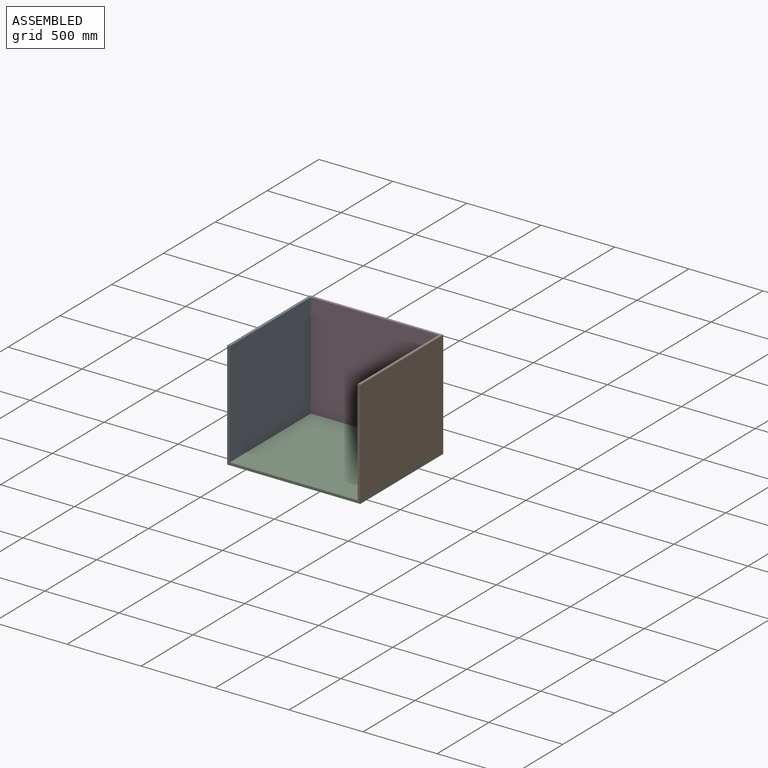
[diagram: assembled view]
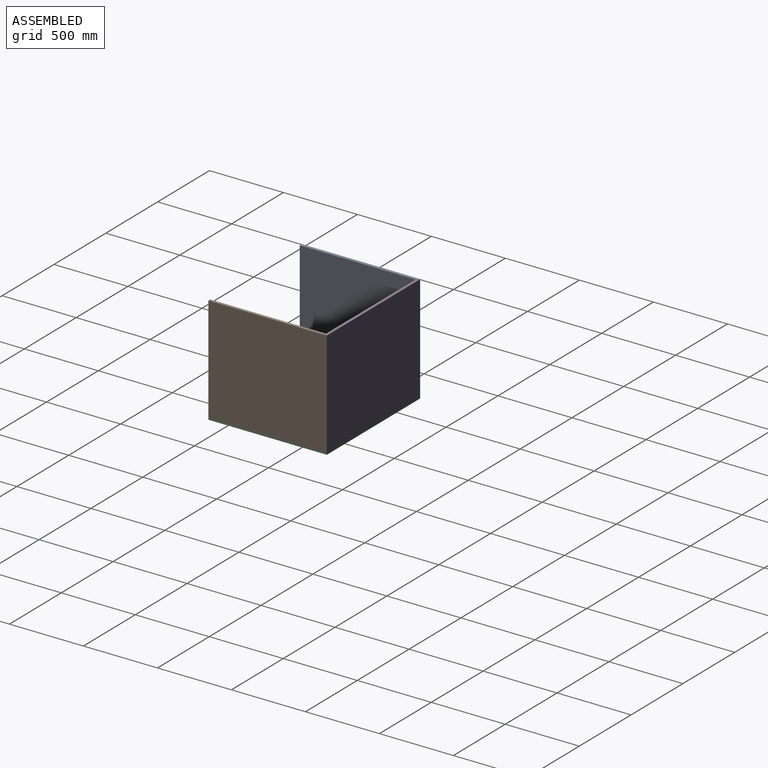
[diagram: assembled view, second angle]
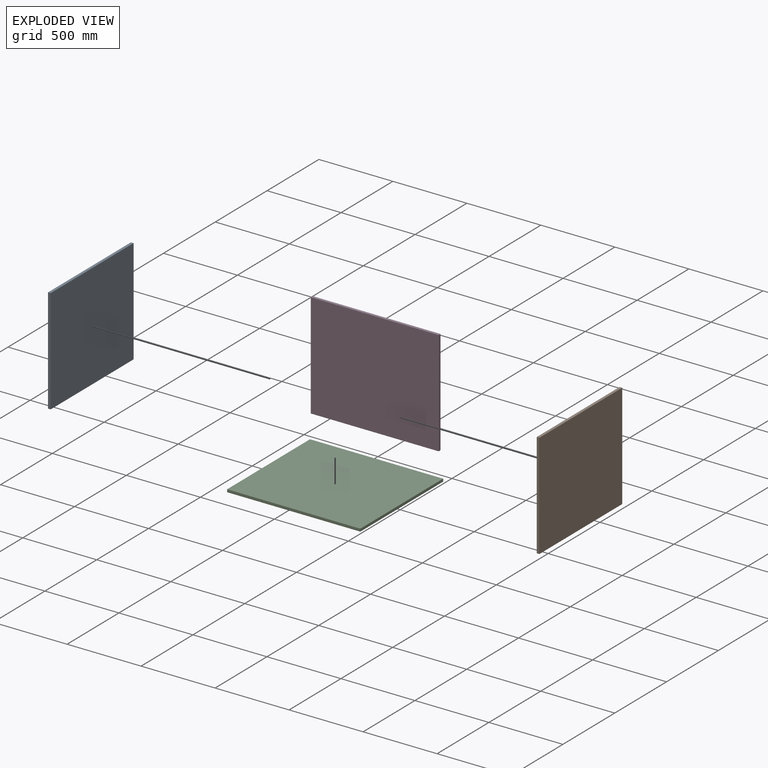
[diagram: exploded view]
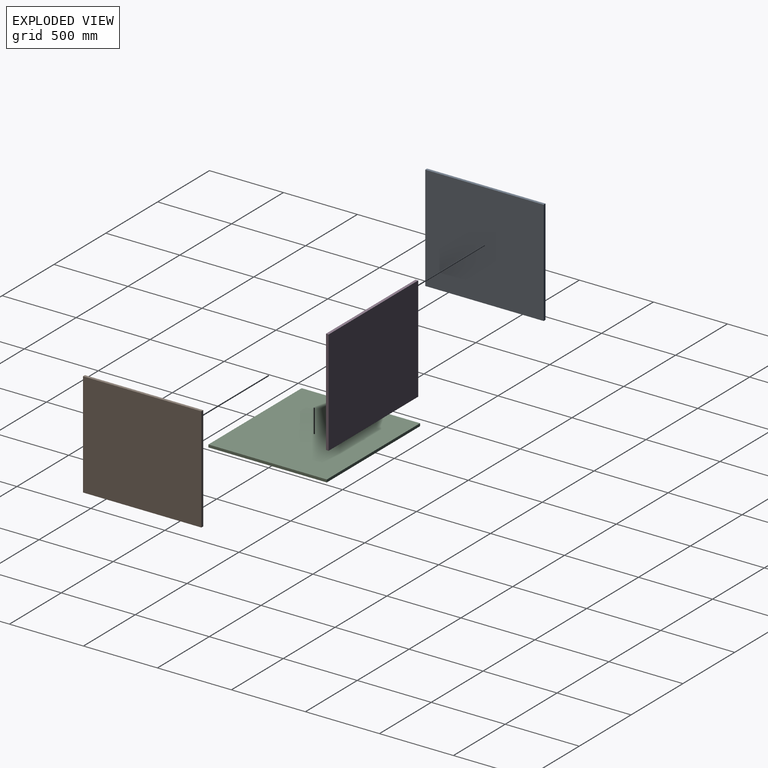
[diagram: exploded view, second angle]
ASSEMBLY  parts=4 mates=9
PART A: 6 faces, bbox 18x710x800 mm
  f0: plane 710x18mm, normal (0,0,1), area 12780mm2, adj f1,f3,f4,f5
  f1: plane 800x18mm, normal (0,-1,0), area 14400mm2, adj f0,f2,f4,f5
  f2: plane 710x18mm, normal (0,0,-1), area 12780mm2, adj f1,f3,f4,f5
  f3: plane 800x18mm, normal (0,1,0), area 14400mm2, adj f0,f2,f4,f5
  f4: plane 800x710mm, normal (1,0,0), area 568000mm2, adj f0,f1,f2,f3
  f5: plane 800x710mm, normal (-1,0,0), area 568000mm2, adj f0,f1,f2,f3
PART B: same geometry as A
PART C: 6 faces, bbox 900x800x18 mm
  f0: plane 900x18mm, normal (0,-1,0), area 16200mm2, adj f1,f3,f4,f5
  f1: plane 800x18mm, normal (1,0,0), area 14400mm2, adj f0,f2,f4,f5
  f2: plane 900x18mm, normal (0,1,0), area 16200mm2, adj f1,f3,f4,f5
  f3: plane 800x18mm, normal (-1,0,0), area 14400mm2, adj f0,f2,f4,f5
  f4: plane 900x800mm, normal (0,0,1), area 720000mm2, adj f0,f1,f2,f3
  f5: plane 900x800mm, normal (0,0,-1), area 720000mm2, adj f0,f1,f2,f3
PART D: 6 faces, bbox 864x18x710 mm
  f0: plane 864x18mm, normal (0,0,1), area 15552mm2, adj f1,f3,f4,f5
  f1: plane 710x18mm, normal (-1,0,0), area 12780mm2, adj f0,f2,f4,f5
  f2: plane 864x18mm, normal (0,0,-1), area 15552mm2, adj f1,f3,f4,f5
  f3: plane 710x18mm, normal (1,0,0), area 12780mm2, adj f0,f2,f4,f5
  f4: plane 864x710mm, normal (0,-1,0), area 613440mm2, adj f0,f1,f2,f3
  f5: plane 864x710mm, normal (0,1,0), area 613440mm2, adj f0,f1,f2,f3
PLACE A rot(axis=(-1,0,0),90deg) t=(-889.97,121.05,318.83)mm
PLACE B rot(axis=(-1,0,0),90deg) t=(-7.97,121.05,318.83)mm
PLACE C rot(axis=(-1,0,0),0deg) t=(-518.37,4.91,-8.23)mm
PLACE D rot(axis=(-1,0,0),0deg) t=(-493.24,401.11,425.73)mm
MATE planar A.f5 <-> C.f3  axis (-1,0,0) through (-889.97,1.11,364.77)mm
MATE planar B.f2 <-> C.f0  axis (0,-1,0) through (1.03,-398.89,364.77)mm
MATE planar A.f2 <-> C.f0  axis (0,-1,0) through (-880.97,-398.89,364.77)mm
MATE planar D.f5 <-> C.f2  axis (0,1,0) through (-439.97,401.11,364.77)mm
MATE planar D.f2 <-> C.f4  axis (0,0,-1) through (-439.97,392.11,9.77)mm
MATE planar A.f4 <-> D.f1  axis (1,0,0) through (-871.97,1.11,364.77)mm
MATE planar A.f3 <-> C.f4  axis (0,0,-1) through (-880.97,1.11,9.77)mm
MATE planar B.f3 <-> C.f4  axis (0,0,-1) through (1.03,1.11,9.77)mm
MATE planar C.f1 <-> B.f4  axis (1,0,0) through (10.03,1.11,0.77)mm
